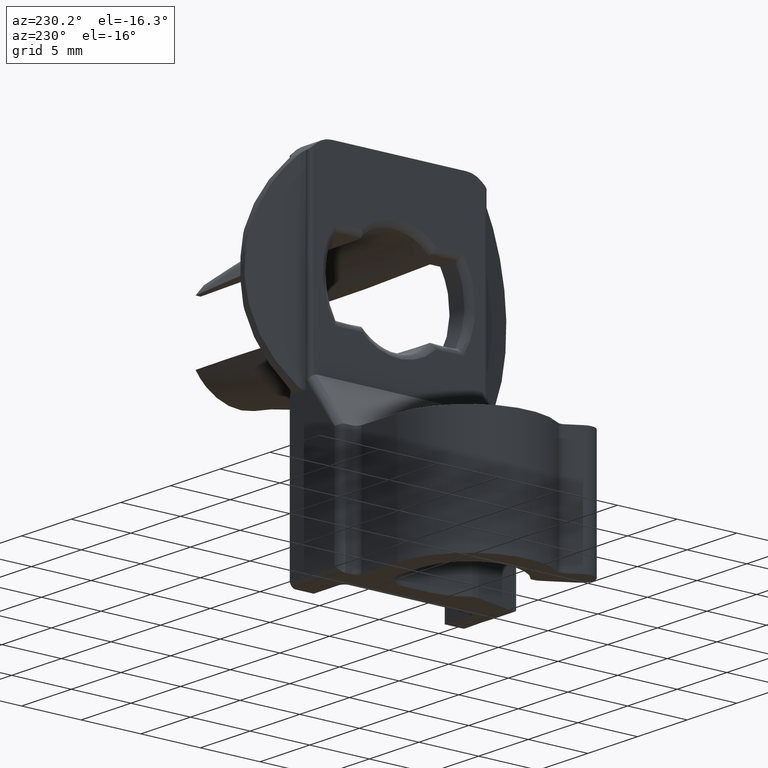
[diagram: clean part render]
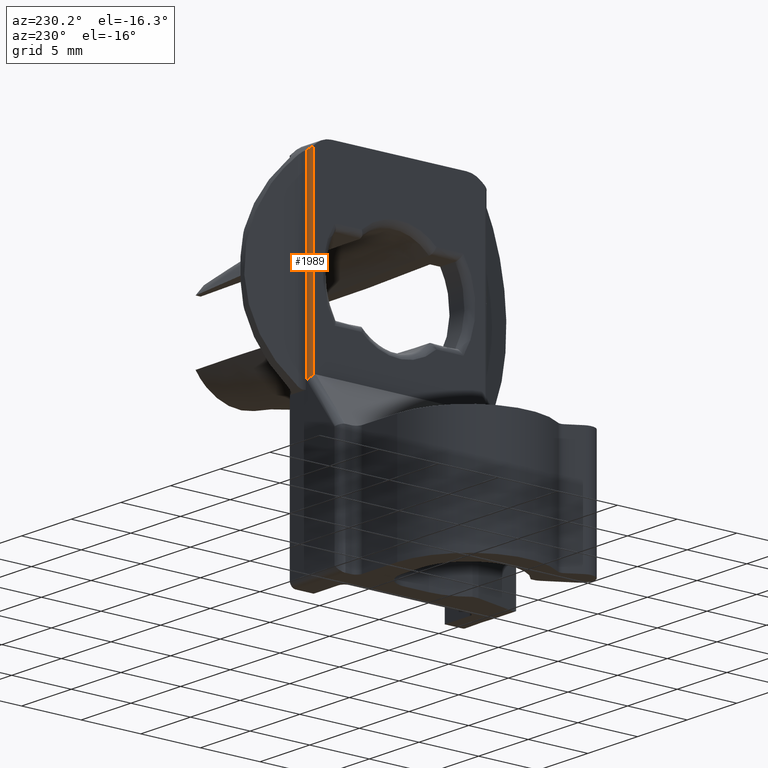
[diagram: same view with one face highlighted and labeled with its STEP entity id]
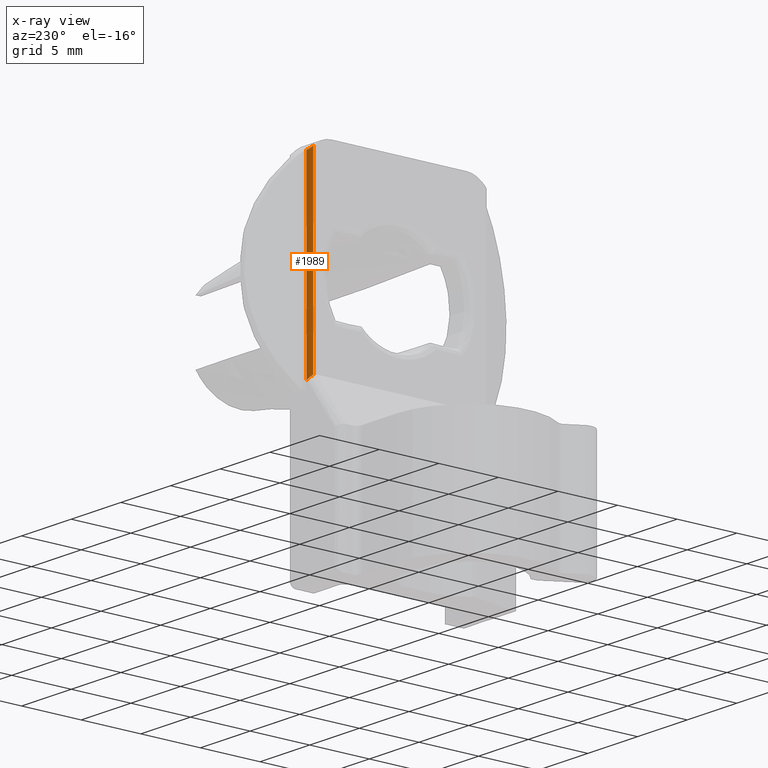
[diagram: x-ray of the same camera — body ghosted, the highlighted face saturated]
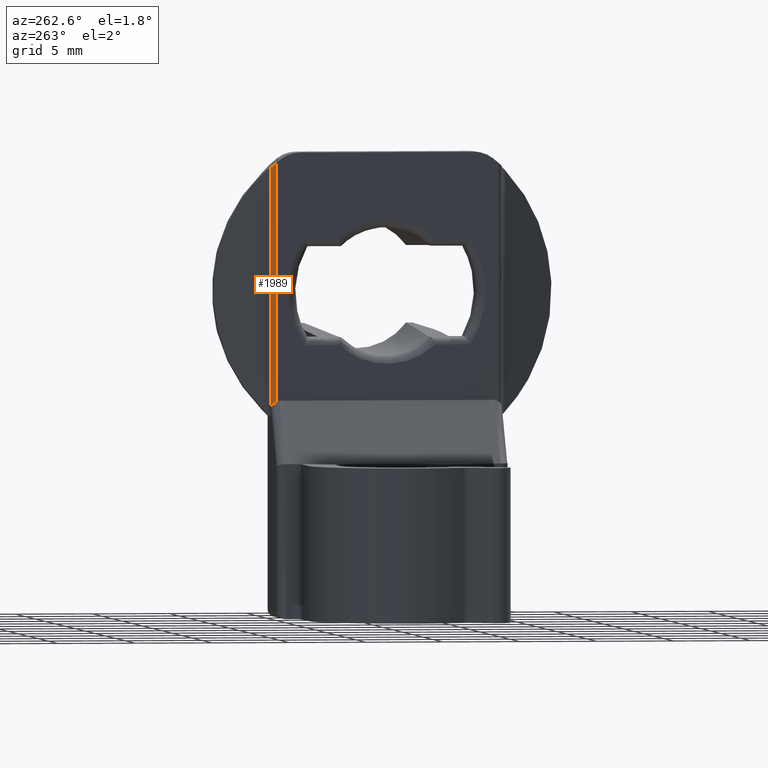
[diagram: same view with one face highlighted and labeled with its STEP entity id]
A machine part, auxiliary view. The second image highlights one B-rep face of the part: STEP entity #1989.
The next image is the same camera in x-ray: the body ghosted, the highlighted face saturated — about 0% of this face is hidden behind the body in this view.
A second angle (auxiliary view) of the same face is appended — the face is thin or edge-on in the first view.
In plain terms, the highlighted face is a freeform B-spline surface patch.
Its self-contained STEP definition (entity closure, byte-faithful):
#1917=CARTESIAN_POINT('',(-1.999897197492667,7.192146915507638,-7.827043762758571));
#1918=CARTESIAN_POINT('',(-1.999897197492667,7.192146915507638,8.719831477448604));
#1919=CARTESIAN_POINT('',(-2.008547677513570,7.522495419685574,-7.827043762758573));
#1920=CARTESIAN_POINT('',(-2.008547677513570,7.522495419685574,8.719831477448604));
#1921=CARTESIAN_POINT('',(-1.678903995779044,7.499257345116055,-7.827043762758571));
#1922=CARTESIAN_POINT('',(-1.678903995779044,7.499257345116055,8.719831477448604));
#1930=(BOUNDED_SURFACE()B_SPLINE_SURFACE(1,2,((#1917,#1919,#1921),(#1918,#1920,#1922)),.UNSPECIFIED.,.F.,.F.,.U.)B_SPLINE_SURFACE_WITH_KNOTS((2,2),(3,3),(0.0,16.546875240207179),(0.0,0.994518590965215),.UNSPECIFIED.)GEOMETRIC_REPRESENTATION_ITEM()RATIONAL_B_SPLINE_SURFACE(((1.0,0.670944236842496,0.996392621533761),(1.0,0.670944236842496,0.996392621533761)))REPRESENTATION_ITEM('')SURFACE());
#1931=CARTESIAN_POINT('',(-2.0,7.200000000000000,-7.069542354496941));
#1932=VERTEX_POINT('',#1931);
#1933=CARTESIAN_POINT('',(-1.700000000000000,7.500000000000000,-7.433304911117710));
#1934=VERTEX_POINT('',#1933);
#1935=CARTESIAN_POINT('',(-2.0,7.200000000000000,-7.069542354496941));
#1936=CARTESIAN_POINT('',(-2.0,7.240475218274068,-7.098983731063934));
#1937=CARTESIAN_POINT('',(-1.991928951410646,7.279963127459522,-7.127496328671555));
#1938=CARTESIAN_POINT('',(-1.960570812804619,7.354011252638131,-7.186856489386211));
#1939=CARTESIAN_POINT('',(-1.938020321177381,7.386818527979190,-7.216288532090765));
#1940=CARTESIAN_POINT('',(-1.895749955421902,7.428189973212567,-7.262060193383024));
#1941=CARTESIAN_POINT('',(-1.880380026091070,7.440495140569273,-7.277413290072192));
#1942=CARTESIAN_POINT('',(-1.847970127628388,7.461686277400419,-7.308068751683631));
#1943=CARTESIAN_POINT('',(-1.830847548017313,7.470653964791032,-7.323456910204673));
#1944=CARTESIAN_POINT('',(-1.794982526309690,7.485224418967027,-7.354655209925121));
#1945=CARTESIAN_POINT('',(-1.776274713496499,7.490778879902778,-7.370427793594537));
#1946=CARTESIAN_POINT('',(-1.738504793506058,7.498140184801620,-7.401795272171341));
#1947=CARTESIAN_POINT('',(-1.719100779919742,7.499999999999991,-7.417673747111254));
#1948=CARTESIAN_POINT('',(-1.700000000000000,7.500000000000000,-7.433304911117710));
#1949=B_SPLINE_CURVE_WITH_KNOTS('',3,(#1935,#1936,#1937,#1938,#1939,#1940,#1941,#1942,#1943,#1944,#1945,#1946,#1947,#1948),.UNSPECIFIED.,.F.,.U.,(4,2,2,2,2,2,4),(0.0,0.250000000000000,0.499999999999999,0.624999999999999,0.750000000000000,0.875000000000000,1.0),.UNSPECIFIED.);
#1950=EDGE_CURVE('',#1932,#1934,#1949,.T.);
#1951=ORIENTED_EDGE('',*,*,#1950,.F.);
#1952=CARTESIAN_POINT('',(-2.0,7.200000000000000,8.316249154516720));
#1953=VERTEX_POINT('',#1952);
#1954=CARTESIAN_POINT('',(-2.0,7.200000000000000,8.316249154516720));
#1955=CARTESIAN_POINT('',(-2.0,7.200000000000000,-7.069542354496941));
#1956=QUASI_UNIFORM_CURVE('',1,(#1954,#1955),.UNSPECIFIED.,.F.,.U.);
#1957=EDGE_CURVE('',#1953,#1932,#1956,.T.);
#1958=ORIENTED_EDGE('',*,*,#1957,.F.);
#1959=CARTESIAN_POINT('',(-1.700000000000035,7.500000000000000,8.046738469715539));
#1960=VERTEX_POINT('',#1959);
#1961=CARTESIAN_POINT('',(-1.700000000000035,7.500000000000000,8.046738469715539));
#1962=CARTESIAN_POINT('',(-1.723414888280065,7.500000000000002,8.046738469715539));
#1963=CARTESIAN_POINT('',(-1.746140974121188,7.497297995071881,8.049259126687113));
#1964=CARTESIAN_POINT('',(-1.779291822025910,7.489554103409822,8.056462732549768));
#1965=CARTESIAN_POINT('',(-1.790193522699116,7.486334234261953,8.059455645673577));
#1966=CARTESIAN_POINT('',(-1.811019106067958,7.478920998376116,8.066335368165097));
#1967=CARTESIAN_POINT('',(-1.821037391051358,7.474709106007761,8.070239422573968));
#1968=CARTESIAN_POINT('',(-1.850013341093741,7.460684808376507,8.083213743213088));
#1969=CARTESIAN_POINT('',(-1.867873237763462,7.449441853200391,8.093583525903576));
#1970=CARTESIAN_POINT('',(-1.899598563206388,7.424862348229266,8.116138079458656));
#1971=CARTESIAN_POINT('',(-1.913729669243379,7.411396364651995,8.128443092674612));
#1972=CARTESIAN_POINT('',(-1.951543912966764,7.367931050914430,8.167932710807367));
#1973=CARTESIAN_POINT('',(-1.969493286695241,7.336525309137959,8.196181580720680));
#1974=CARTESIAN_POINT('',(-1.987836393941959,7.286409827130623,8.240675388585329));
#1975=CARTESIAN_POINT('',(-1.992402260486188,7.269322749094628,8.255753721027400));
#1976=CARTESIAN_POINT('',(-1.998469163843385,7.234941146433691,8.285900635441104));
#1977=CARTESIAN_POINT('',(-2.0,7.217565463966058,8.301041416243638));
#1978=CARTESIAN_POINT('',(-2.0,7.200000000000000,8.316249154516720));
#1979=B_SPLINE_CURVE_WITH_KNOTS('',3,(#1961,#1962,#1963,#1964,#1965,#1966,#1967,#1968,#1969,#1970,#1971,#1972,#1973,#1974,#1975,#1976,#1977,#1978),.UNSPECIFIED.,.F.,.U.,(4,2,2,2,2,2,2,2,4),(0.0,0.125000000000002,0.187500000000002,0.250000000000002,0.375000000000002,0.500000000000003,0.750000000000004,0.875000000000002,1.0),.UNSPECIFIED.);
#1980=EDGE_CURVE('',#1960,#1953,#1979,.T.);
#1981=ORIENTED_EDGE('',*,*,#1980,.F.);
#1982=CARTESIAN_POINT('',(-1.700000000000000,7.500000000000000,-7.433304911117710));
#1983=CARTESIAN_POINT('',(-1.700000000000035,7.500000000000000,8.046738469715539));
#1984=QUASI_UNIFORM_CURVE('',1,(#1982,#1983),.UNSPECIFIED.,.F.,.U.);
#1985=EDGE_CURVE('',#1934,#1960,#1984,.T.);
#1986=ORIENTED_EDGE('',*,*,#1985,.F.);
#1987=EDGE_LOOP('',(#1951,#1958,#1981,#1986));
#1988=FACE_OUTER_BOUND('',#1987,.T.);
#1989=ADVANCED_FACE('',(#1988),#1930,.T.);